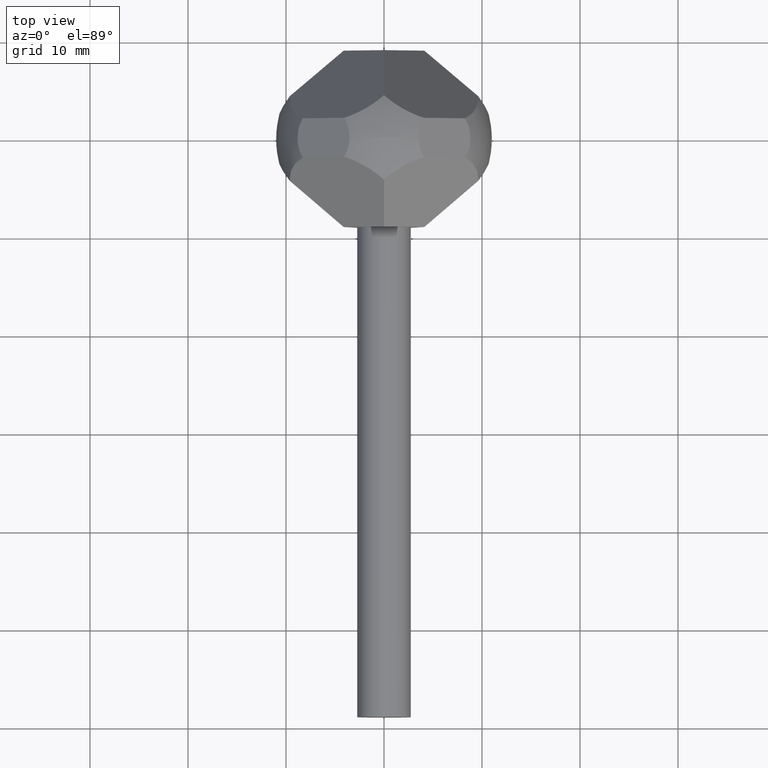
[diagram: clean part render]
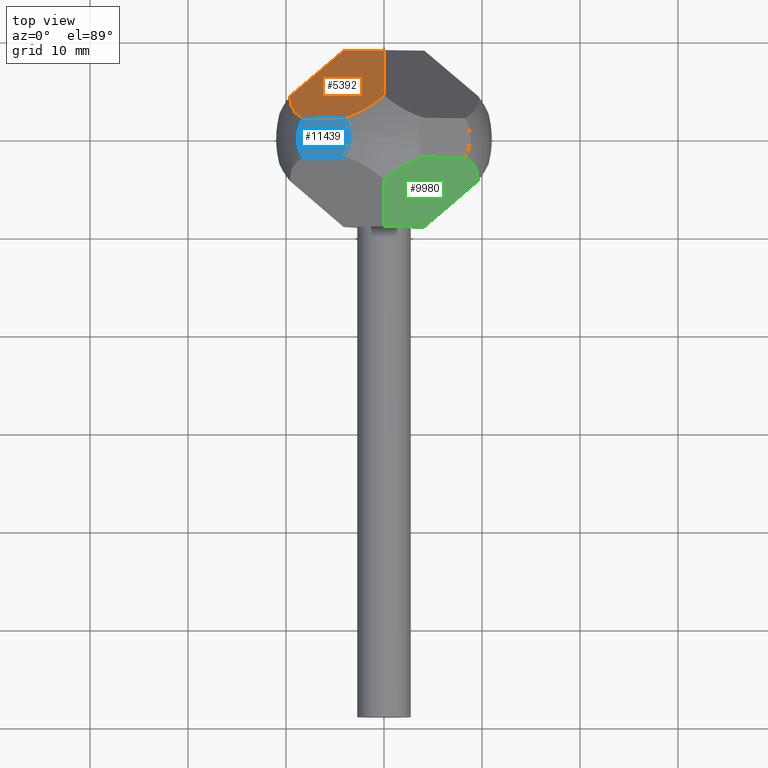
[diagram: same view with three faces highlighted in distinct colors, each labeled with its STEP entity id]
A machine part, top view with three faces highlighted in distinct colors.
Their STEP definitions:

[orange] entity #5392 — the highlighted planar face has unit normal (-0.4156, 0.7071, 0.5721).
#81 = DIRECTION ( 'NONE',  ( 0.000000000000000000, -0.6289601696450953794, 0.7774375248211350398 ) ) ;
#141 = VERTEX_POINT ( 'NONE', #1703 ) ;
#486 = DIRECTION ( 'NONE',  ( 0.8090169943749474513, 0.000000000000000000, 0.5877852522924731371 ) ) ;
#1240 = VERTEX_POINT ( 'NONE', #9353 ) ;
#1406 = EDGE_CURVE ( 'NONE', #9678, #141, #7400, .T. ) ;
#1440 = DIRECTION ( 'NONE',  ( -1.163280632920548923E-16, -0.6289601696450954904, 0.7774375248211349287 ) ) ;
#1703 = CARTESIAN_POINT ( 'NONE',  ( -4.069857341404837570, 1.999999999999983569, 10.02178932230234132 ) ) ;
#2042 = EDGE_CURVE ( 'NONE', #10550, #9678, #7244, .T. ) ;
#2404 = CARTESIAN_POINT ( 'NONE',  ( 2.602085213965210642E-15, 9.730863735000101045, 3.422840662499755826 ) ) ;
#2409 = ORIENTED_EDGE ( 'NONE', *, *, #7069, .F. ) ;
#2953 = VECTOR ( 'NONE', #7331, 999.9999999999998863 ) ;
#3222 = DIRECTION ( 'NONE',  ( 0.000000000000000000, -0.6289601696450953794, 0.7774375248211350398 ) ) ;
#3235 = PLANE ( 'NONE',  #11916 ) ;
#3727 = AXIS2_PLACEMENT_3D ( 'NONE', #7497, #5606, #81 ) ;
#3804 = CARTESIAN_POINT ( 'NONE',  ( -12.34349029814193344, 1.999999999999984457, 4.010643118126101747 ) ) ;
#3862 = CARTESIAN_POINT ( 'NONE',  ( -8.273632956737095867, 1.999999999999983569, 6.967567559571549829 ) ) ;
#3884 = EDGE_CURVE ( 'NONE', #5121, #10550, #9236, .T. ) ;
#4151 = CARTESIAN_POINT ( 'NONE',  ( -2.057248383023658977, 9.000000000000000000, 2.831559480312319632 ) ) ;
#4478 = CARTESIAN_POINT ( 'NONE',  ( 3.216794516627720140E-15, 9.000000000000000000, 4.326237921249272311 ) ) ;
#4508 = ORIENTED_EDGE ( 'NONE', *, *, #3884, .F. ) ;
#4628 = CARTESIAN_POINT ( 'NONE',  ( -3.255314916310412698, 9.730863735000102821, 1.057715933750025705 ) ) ;
#4740 = DIRECTION ( 'NONE',  ( -0.8090169943749474513, 0.000000000000000000, -0.5877852522924731371 ) ) ;
#4988 = ORIENTED_EDGE ( 'NONE', *, *, #1406, .F. ) ;
#5121 = VERTEX_POINT ( 'NONE', #9579 ) ;
#5161 = CARTESIAN_POINT ( 'NONE',  ( -3.673657826827962047, 6.249999999999987566, 5.056356214843428454 ) ) ;
#5392 = ADVANCED_FACE ( 'NONE', ( #7910 ), #3235, .T. ) ;
#5541 = ORIENTED_EDGE ( 'NONE', *, *, #2042, .F. ) ;
#5606 = DIRECTION ( 'NONE',  ( 0.4156269377774541307, -0.7071067811865463515, -0.5720614028176853605 ) ) ;
#6001 = DIRECTION ( 'NONE',  ( 0.4156269377774541307, -0.7071067811865463515, -0.5720614028176853605 ) ) ;
#6550 = AXIS2_PLACEMENT_3D ( 'NONE', #5161, #6001, #3222 ) ;
#6562 = LINE ( 'NONE', #3804, #10033 ) ;
#6678 = CARTESIAN_POINT ( 'NONE',  ( 2.002560154317765396E-15, 4.313614104251378478, 10.11892945719079506 ) ) ;
#6938 = DIRECTION ( 'NONE',  ( -0.4156269377774541307, 0.7071067811865463515, 0.5720614028176852495 ) ) ;
#7069 = EDGE_CURVE ( 'NONE', #10307, #1240, #9920, .T. ) ;
#7244 = LINE ( 'NONE', #2404, #10574 ) ;
#7331 = DIRECTION ( 'NONE',  ( 0.7393870239935156352, 0.6289601696450953794, -0.2402414072345258611 ) ) ;
#7400 = CIRCLE ( 'NONE', #3727, 6.547900426854401879 ) ;
#7497 = CARTESIAN_POINT ( 'NONE',  ( -3.673657826827962047, 6.249999999999987566, 5.056356214843428454 ) ) ;
#7714 = LINE ( 'NONE', #4628, #2953 ) ;
#7910 = FACE_OUTER_BOUND ( 'NONE', #10048, .T. ) ;
#7939 = CARTESIAN_POINT ( 'NONE',  ( 4.114496766047307297, 9.000000000000000000, 7.315594803123163459 ) ) ;
#7988 = ORIENTED_EDGE ( 'NONE', *, *, #8858, .F. ) ;
#8697 = EDGE_CURVE ( 'NONE', #1240, #5121, #7714, .T. ) ;
#8858 = EDGE_CURVE ( 'NONE', #141, #10307, #6562, .T. ) ;
#9236 = LINE ( 'NONE', #7939, #10841 ) ;
#9353 = CARTESIAN_POINT ( 'NONE',  ( -9.623673798192285744, 4.313614104251376702, 3.126921167153215997 ) ) ;
#9579 = CARTESIAN_POINT ( 'NONE',  ( -4.114496766047319731, 9.000000000000000000, 1.336881039375369173 ) ) ;
#9678 = VERTEX_POINT ( 'NONE', #6678 ) ;
#9920 = CIRCLE ( 'NONE', #6550, 6.547900426854401879 ) ;
#10033 = VECTOR ( 'NONE', #4740, 1000.000000000000000 ) ;
#10048 = EDGE_LOOP ( 'NONE', ( #2409, #7988, #4988, #5541, #4508, #11399 ) ) ;
#10307 = VERTEX_POINT ( 'NONE', #3862 ) ;
#10550 = VERTEX_POINT ( 'NONE', #4478 ) ;
#10574 = VECTOR ( 'NONE', #1440, 1000.000000000000000 ) ;
#10841 = VECTOR ( 'NONE', #486, 1000.000000000000114 ) ;
#11385 = DIRECTION ( 'NONE',  ( -0.8090169943749474513, 0.000000000000000000, -0.5877852522924731371 ) ) ;
#11399 = ORIENTED_EDGE ( 'NONE', *, *, #8697, .F. ) ;
#11916 = AXIS2_PLACEMENT_3D ( 'NONE', #4151, #6938, #11385 ) ;

[blue] entity #11439 — the highlighted planar face has unit normal (0.5878, 0, -0.809).
#141 = VERTEX_POINT ( 'NONE', #1703 ) ;
#967 = CIRCLE ( 'NONE', #2625, 3.278719262151007285 ) ;
#1420 = LINE ( 'NONE', #2029, #4457 ) ;
#1703 = CARTESIAN_POINT ( 'NONE',  ( -4.069857341404837570, 1.999999999999983569, 10.02178932230234132 ) ) ;
#2029 = CARTESIAN_POINT ( 'NONE',  ( -12.34349029814193344, -1.999999999999984457, 4.010643118126101747 ) ) ;
#2618 = ORIENTED_EDGE ( 'NONE', *, *, #7179, .T. ) ;
#2625 = AXIS2_PLACEMENT_3D ( 'NONE', #3043, #11481, #3256 ) ;
#2833 = DIRECTION ( 'NONE',  ( -0.5877852522924731371, -0.000000000000000000, 0.8090169943749474513 ) ) ;
#3043 = CARTESIAN_POINT ( 'NONE',  ( -6.171745149070966718, 0.000000000000000000, 8.494678440936946018 ) ) ;
#3256 = DIRECTION ( 'NONE',  ( -0.8090169943749473402, 0.000000000000000000, -0.5877852522924732481 ) ) ;
#3356 = ORIENTED_EDGE ( 'NONE', *, *, #5253, .F. ) ;
#3538 = FACE_OUTER_BOUND ( 'NONE', #7291, .T. ) ;
#3804 = CARTESIAN_POINT ( 'NONE',  ( -12.34349029814193344, 1.999999999999984457, 4.010643118126101747 ) ) ;
#3862 = CARTESIAN_POINT ( 'NONE',  ( -8.273632956737095867, 1.999999999999983569, 6.967567559571549829 ) ) ;
#4239 = VERTEX_POINT ( 'NONE', #11241 ) ;
#4457 = VECTOR ( 'NONE', #9406, 1000.000000000000000 ) ;
#4740 = DIRECTION ( 'NONE',  ( -0.8090169943749474513, 0.000000000000000000, -0.5877852522924731371 ) ) ;
#5253 = EDGE_CURVE ( 'NONE', #6261, #4239, #1420, .T. ) ;
#6261 = VERTEX_POINT ( 'NONE', #9296 ) ;
#6384 = EDGE_CURVE ( 'NONE', #10307, #4239, #967, .T. ) ;
#6562 = LINE ( 'NONE', #3804, #10033 ) ;
#6782 = ORIENTED_EDGE ( 'NONE', *, *, #6384, .T. ) ;
#7179 = EDGE_CURVE ( 'NONE', #6261, #141, #8309, .T. ) ;
#7291 = EDGE_LOOP ( 'NONE', ( #6782, #3356, #2618, #10167 ) ) ;
#8180 = PLANE ( 'NONE',  #8203 ) ;
#8203 = AXIS2_PLACEMENT_3D ( 'NONE', #11849, #9002, #9921 ) ;
#8284 = CARTESIAN_POINT ( 'NONE',  ( -6.171745149070966718, 0.000000000000000000, 8.494678440936946018 ) ) ;
#8309 = CIRCLE ( 'NONE', #11582, 3.278719262151007285 ) ;
#8858 = EDGE_CURVE ( 'NONE', #141, #10307, #6562, .T. ) ;
#9002 = DIRECTION ( 'NONE',  ( 0.5877852522924731371, 0.000000000000000000, -0.8090169943749474513 ) ) ;
#9185 = DIRECTION ( 'NONE',  ( -0.8090169943749473402, 1.776356839400250465E-15, -0.5877852522924732481 ) ) ;
#9296 = CARTESIAN_POINT ( 'NONE',  ( -4.069857341404837570, -1.999999999999983569, 10.02178932230234132 ) ) ;
#9406 = DIRECTION ( 'NONE',  ( -0.8090169943749474513, -0.000000000000000000, -0.5877852522924731371 ) ) ;
#9921 = DIRECTION ( 'NONE',  ( -0.8090169943749474513, 0.000000000000000000, -0.5877852522924731371 ) ) ;
#10033 = VECTOR ( 'NONE', #4740, 1000.000000000000000 ) ;
#10167 = ORIENTED_EDGE ( 'NONE', *, *, #8858, .T. ) ;
#10307 = VERTEX_POINT ( 'NONE', #3862 ) ;
#11241 = CARTESIAN_POINT ( 'NONE',  ( -8.273632956737095867, -1.999999999999983569, 6.967567559571549829 ) ) ;
#11439 = ADVANCED_FACE ( 'NONE', ( #3538 ), #8180, .F. ) ;
#11481 = DIRECTION ( 'NONE',  ( -0.5877852522924731371, -0.000000000000000000, 0.8090169943749474513 ) ) ;
#11582 = AXIS2_PLACEMENT_3D ( 'NONE', #8284, #2833, #9185 ) ;
#11849 = CARTESIAN_POINT ( 'NONE',  ( -12.34349029814193344, 9.000000000000000000, 4.010643118126101747 ) ) ;

[green] entity #9980 — the highlighted planar face has unit normal (0.4156, -0.7071, 0.5721).
#80 = CARTESIAN_POINT ( 'NONE',  ( 3.673657826827963380, -6.249999999999990230, 5.056356214843432006 ) ) ;
#111 = EDGE_CURVE ( 'NONE', #8562, #10342, #10858, .T. ) ;
#314 = CARTESIAN_POINT ( 'NONE',  ( 2.602085213965210642E-15, -9.730863735000101045, 3.422840662499755826 ) ) ;
#570 = AXIS2_PLACEMENT_3D ( 'NONE', #3303, #10847, #6031 ) ;
#1010 = AXIS2_PLACEMENT_3D ( 'NONE', #80, #1011, #5643 ) ;
#1011 = DIRECTION ( 'NONE',  ( 0.4156269377774541307, -0.7071067811865463515, 0.5720614028176854715 ) ) ;
#1180 = DIRECTION ( 'NONE',  ( 0.7393870239935154132, 0.6289601696450953794, 0.2402414072345258889 ) ) ;
#1349 = DIRECTION ( 'NONE',  ( -1.163280632920548923E-16, 0.6289601696450954904, 0.7774375248211349287 ) ) ;
#1661 = LINE ( 'NONE', #8786, #11466 ) ;
#2294 = VERTEX_POINT ( 'NONE', #4851 ) ;
#2312 = VECTOR ( 'NONE', #7456, 999.9999999999998863 ) ;
#2615 = LINE ( 'NONE', #11136, #2312 ) ;
#3065 = CARTESIAN_POINT ( 'NONE',  ( 3.255314916310414475, -9.730863735000102821, 1.057715933750029480 ) ) ;
#3086 = ORIENTED_EDGE ( 'NONE', *, *, #11691, .T. ) ;
#3190 = EDGE_CURVE ( 'NONE', #2294, #5282, #2615, .T. ) ;
#3205 = DIRECTION ( 'NONE',  ( -0.8090169943749474513, 0.000000000000000000, 0.5877852522924730261 ) ) ;
#3249 = DIRECTION ( 'NONE',  ( 0.4156269377774541307, -0.7071067811865463515, 0.5720614028176854715 ) ) ;
#3258 = ORIENTED_EDGE ( 'NONE', *, *, #111, .T. ) ;
#3303 = CARTESIAN_POINT ( 'NONE',  ( 3.673657826827963380, -6.249999999999990230, 5.056356214843432006 ) ) ;
#4105 = LINE ( 'NONE', #314, #5125 ) ;
#4276 = CARTESIAN_POINT ( 'NONE',  ( 4.114496766047321508, -9.000000000000000000, 1.336881039375372282 ) ) ;
#4851 = CARTESIAN_POINT ( 'NONE',  ( 8.273632956737076327, -1.999999999999981792, 6.967567559571572922 ) ) ;
#5125 = VECTOR ( 'NONE', #1349, 1000.000000000000000 ) ;
#5282 = VERTEX_POINT ( 'NONE', #5527 ) ;
#5417 = CARTESIAN_POINT ( 'NONE',  ( 2.002560154317765396E-15, -4.313614104251378478, 10.11892945719079506 ) ) ;
#5527 = CARTESIAN_POINT ( 'NONE',  ( 4.069857341404862439, -1.999999999999981792, 10.02178932230233066 ) ) ;
#5571 = AXIS2_PLACEMENT_3D ( 'NONE', #7881, #3249, #3205 ) ;
#5643 = DIRECTION ( 'NONE',  ( 0.000000000000000000, 0.6289601696450954904, 0.7774375248211349287 ) ) ;
#5684 = CIRCLE ( 'NONE', #1010, 6.547900426854393885 ) ;
#5690 = VERTEX_POINT ( 'NONE', #5417 ) ;
#5960 = DIRECTION ( 'NONE',  ( 0.8090169943749474513, 0.000000000000000000, -0.5877852522924731371 ) ) ;
#6031 = DIRECTION ( 'NONE',  ( -1.589569201934397832E-15, 0.6289601696450949353, 0.7774375248211353728 ) ) ;
#6744 = ORIENTED_EDGE ( 'NONE', *, *, #3190, .T. ) ;
#7456 = DIRECTION ( 'NONE',  ( -0.8090169943749475623, 0.000000000000000000, 0.5877852522924731371 ) ) ;
#7881 = CARTESIAN_POINT ( 'NONE',  ( 2.057248383023660310, -9.000000000000000000, 2.831559480312322741 ) ) ;
#8130 = CARTESIAN_POINT ( 'NONE',  ( 3.216794516627720140E-15, -9.000000000000000000, 4.326237921249272311 ) ) ;
#8377 = VECTOR ( 'NONE', #1180, 1000.000000000000114 ) ;
#8497 = ORIENTED_EDGE ( 'NONE', *, *, #9696, .T. ) ;
#8562 = VERTEX_POINT ( 'NONE', #4276 ) ;
#8731 = PLANE ( 'NONE',  #5571 ) ;
#8786 = CARTESIAN_POINT ( 'NONE',  ( 8.228993532094627028, -9.000000000000000000, -1.652475842498518643 ) ) ;
#8837 = CIRCLE ( 'NONE', #570, 6.547900426854394773 ) ;
#8877 = EDGE_CURVE ( 'NONE', #9829, #5690, #4105, .T. ) ;
#9424 = FACE_OUTER_BOUND ( 'NONE', #9894, .T. ) ;
#9696 = EDGE_CURVE ( 'NONE', #9829, #8562, #1661, .T. ) ;
#9829 = VERTEX_POINT ( 'NONE', #8130 ) ;
#9894 = EDGE_LOOP ( 'NONE', ( #3086, #6744, #11578, #10047, #8497, #3258 ) ) ;
#9980 = ADVANCED_FACE ( 'NONE', ( #9424 ), #8731, .T. ) ;
#10047 = ORIENTED_EDGE ( 'NONE', *, *, #8877, .F. ) ;
#10244 = CARTESIAN_POINT ( 'NONE',  ( 9.623673798192282192, -4.313614104251377590, 3.126921167153217773 ) ) ;
#10338 = EDGE_CURVE ( 'NONE', #5282, #5690, #5684, .T. ) ;
#10342 = VERTEX_POINT ( 'NONE', #10244 ) ;
#10847 = DIRECTION ( 'NONE',  ( 0.4156269377774541307, -0.7071067811865463515, 0.5720614028176854715 ) ) ;
#10858 = LINE ( 'NONE', #3065, #8377 ) ;
#11136 = CARTESIAN_POINT ( 'NONE',  ( 1.781697888018181159E-15, -1.999999999999982681, 12.97871376374778762 ) ) ;
#11466 = VECTOR ( 'NONE', #5960, 1000.000000000000114 ) ;
#11578 = ORIENTED_EDGE ( 'NONE', *, *, #10338, .T. ) ;
#11691 = EDGE_CURVE ( 'NONE', #10342, #2294, #8837, .T. ) ;